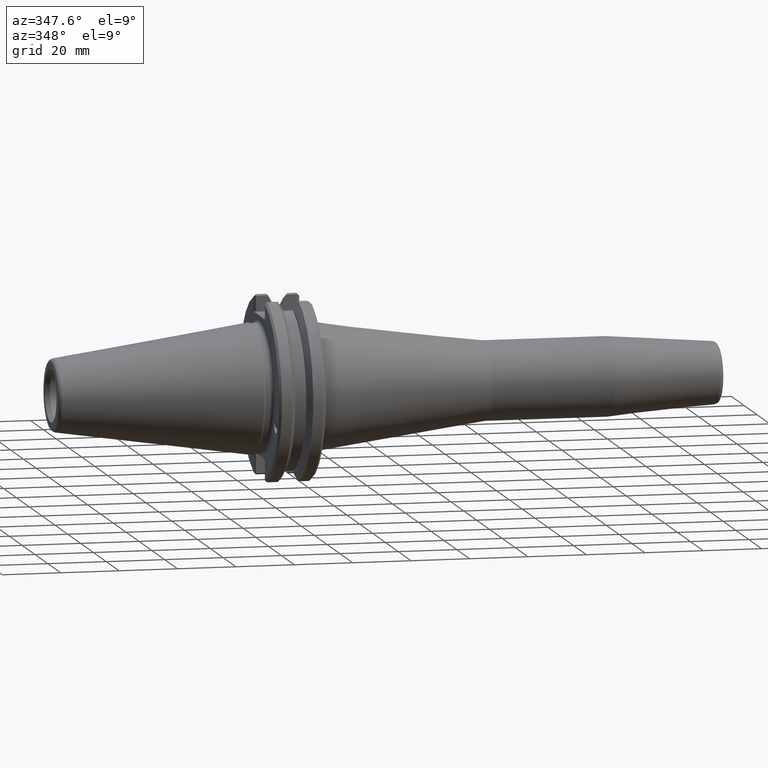
[diagram: clean part render]
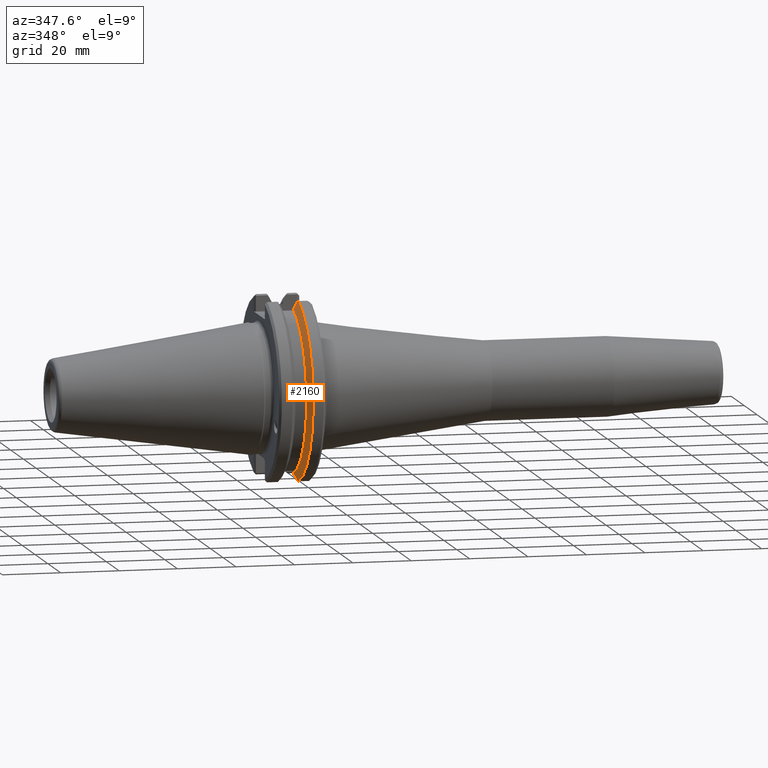
[diagram: same view with one face highlighted and labeled with its STEP entity id]
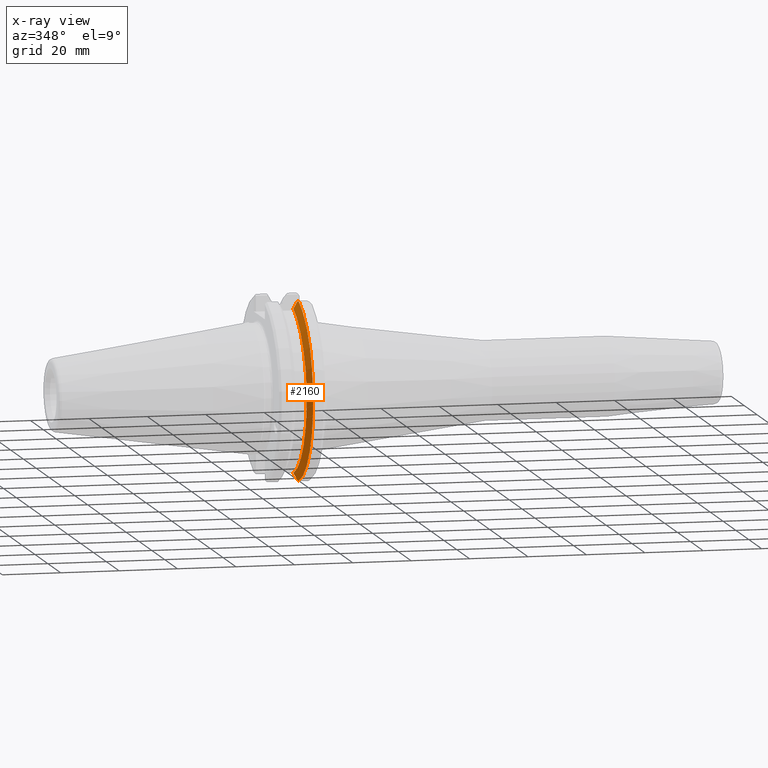
[diagram: x-ray of the same camera — body ghosted, the highlighted face saturated]
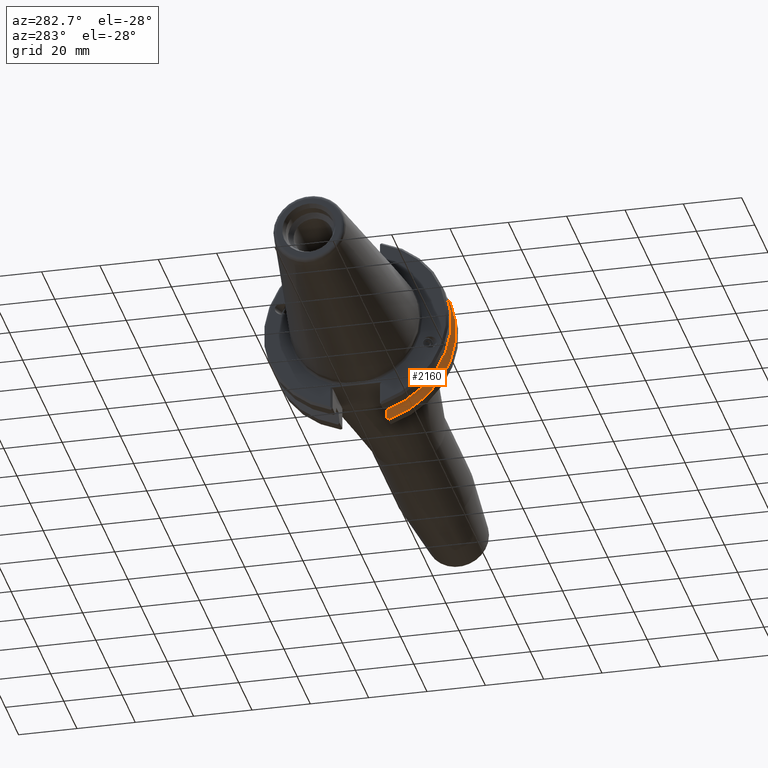
[diagram: same view with one face highlighted and labeled with its STEP entity id]
A machine part, auxiliary view. The second image highlights one B-rep face of the part: STEP entity #2160.
The next image is the same camera in x-ray: the body ghosted, the highlighted face saturated — about 0% of this face is hidden behind the body in this view.
A second angle (auxiliary view) of the same face is appended — the face is thin or edge-on in the first view.
In plain terms, the highlighted conical surface has half-angle 60 deg.
Its self-contained STEP definition (entity closure, byte-faithful):
#1373=CARTESIAN_POINT('',(14.306060807522002,-8.128000000011808,-30.056987814409212));
#1374=VERTEX_POINT('',#1373);
#1381=CARTESIAN_POINT('',(13.051789999998951,-8.128000000011500,-27.800289305193893));
#1382=VERTEX_POINT('',#1381);
#1383=CARTESIAN_POINT('',(13.051789999993876,-8.128000000011500,-27.800289305184727));
#1384=CARTESIAN_POINT('',(13.654464253808616,-8.128000000011648,-28.887852110687117));
#1385=CARTESIAN_POINT('',(14.306060807522002,-8.128000000011808,-30.056987814409212));
#1393=(BOUNDED_CURVE()B_SPLINE_CURVE(2,(#1383,#1384,#1385),.UNSPECIFIED.,.F.,.U.)B_SPLINE_CURVE_WITH_KNOTS((3,3),(0.0,0.260803090048524),.UNSPECIFIED.)CURVE()GEOMETRIC_REPRESENTATION_ITEM()RATIONAL_B_SPLINE_CURVE((1.0,1.000895493564451,1.000379364127697))REPRESENTATION_ITEM(''));
#1394=EDGE_CURVE('',#1382,#1374,#1393,.T.);
#1467=CARTESIAN_POINT('',(14.660216354556548,-8.740091912682226,-30.523323760001411));
#1468=VERTEX_POINT('',#1467);
#1475=CARTESIAN_POINT('',(14.660216354575507,-8.740091912722329,-30.523323760031310));
#1476=CARTESIAN_POINT('',(14.480420481884941,-8.431060688454533,-30.287881393937134));
#1477=CARTESIAN_POINT('',(14.306060807522002,-8.128000000011808,-30.056987814409212));
#1485=(BOUNDED_CURVE()B_SPLINE_CURVE(2,(#1475,#1476,#1477),.UNSPECIFIED.,.F.,.U.)B_SPLINE_CURVE_WITH_KNOTS((3,3),(0.0,0.081357522610922),.UNSPECIFIED.)CURVE()GEOMETRIC_REPRESENTATION_ITEM()RATIONAL_B_SPLINE_CURVE((1.0,1.000360586802932,1.000571469393045))REPRESENTATION_ITEM(''));
#1486=EDGE_CURVE('',#1468,#1374,#1485,.T.);
#2105=CARTESIAN_POINT('',(15.186824415273975,-1.201768E-011,0.0));
#2106=DIRECTION('',(1.0,-2.436770E-013,0.0));
#2107=DIRECTION('',(2.436620E-013,1.0,0.0));
#2108=AXIS2_PLACEMENT_3D('',#2105,#2106,#2107);
#2109=CONICAL_SURFACE('',#2108,32.662111916838406,60.000000000013976);
#2110=ORIENTED_EDGE('',*,*,#1486,.F.);
#2111=CARTESIAN_POINT('',(14.660216354556548,-8.740091912683237,30.523323760001119));
#2112=VERTEX_POINT('',#2111);
#2113=CARTESIAN_POINT('',(14.660216354556550,0.0,0.0));
#2114=DIRECTION('',(1.0,-2.436770E-013,0.0));
#2115=DIRECTION('',(2.436770E-013,1.0,0.0));
#2116=AXIS2_PLACEMENT_3D('',#2113,#2114,#2115);
#2117=CIRCLE('',#2116,31.750000000000000);
#2118=EDGE_CURVE('',#2112,#1468,#2117,.T.);
#2119=ORIENTED_EDGE('',*,*,#2118,.F.);
#2120=CARTESIAN_POINT('',(14.306060807521657,-8.128000000010704,30.056987814408920));
#2121=VERTEX_POINT('',#2120);
#2122=CARTESIAN_POINT('',(14.306060807521657,-8.128000000010704,30.056987814408920));
#2123=CARTESIAN_POINT('',(14.480420481882085,-8.431060688449511,30.287881393933382));
#2124=CARTESIAN_POINT('',(14.660216354569895,-8.740091912713080,30.523323760023857));
#2132=(BOUNDED_CURVE()B_SPLINE_CURVE(2,(#2122,#2123,#2124),.UNSPECIFIED.,.F.,.U.)B_SPLINE_CURVE_WITH_KNOTS((3,3),(0.310567973942463,0.391925496552264),.UNSPECIFIED.)CURVE()GEOMETRIC_REPRESENTATION_ITEM()RATIONAL_B_SPLINE_CURVE((1.000571469392835,1.000360586802799,1.0))REPRESENTATION_ITEM(''));
#2133=EDGE_CURVE('',#2121,#2112,#2132,.T.);
#2134=ORIENTED_EDGE('',*,*,#2133,.F.);
#2135=CARTESIAN_POINT('',(13.051789999998951,-8.128000000010706,27.800289305194124));
#2136=VERTEX_POINT('',#2135);
#2137=CARTESIAN_POINT('',(14.306060807521657,-8.128000000010704,30.056987814408920));
#2138=CARTESIAN_POINT('',(13.654464253822802,-8.128000000010704,28.887852110712878));
#2139=CARTESIAN_POINT('',(13.051789999993876,-8.128000000010704,27.800289305184958));
#2147=(BOUNDED_CURVE()B_SPLINE_CURVE(2,(#2137,#2138,#2139),.UNSPECIFIED.,.F.,.U.)B_SPLINE_CURVE_WITH_KNOTS((3,3),(0.070089065334381,0.330892155381501),.UNSPECIFIED.)CURVE()GEOMETRIC_REPRESENTATION_ITEM()RATIONAL_B_SPLINE_CURVE((1.000379364128754,1.000895493566927,1.0))REPRESENTATION_ITEM(''));
#2148=EDGE_CURVE('',#2121,#2136,#2147,.T.);
#2149=ORIENTED_EDGE('',*,*,#2148,.T.);
#2150=CARTESIAN_POINT('',(13.051790000000931,-1.149742E-011,0.0));
#2151=DIRECTION('',(-1.0,2.436620E-013,0.0));
#2152=DIRECTION('',(2.436620E-013,1.0,0.0));
#2153=AXIS2_PLACEMENT_3D('',#2150,#2151,#2152);
#2154=CIRCLE('',#2153,28.964123833675309);
#2155=EDGE_CURVE('',#1382,#2136,#2154,.T.);
#2156=ORIENTED_EDGE('',*,*,#2155,.F.);
#2157=ORIENTED_EDGE('',*,*,#1394,.T.);
#2158=EDGE_LOOP('',(#2110,#2119,#2134,#2149,#2156,#2157));
#2159=FACE_OUTER_BOUND('',#2158,.T.);
#2160=ADVANCED_FACE('',(#2159),#2109,.T.);